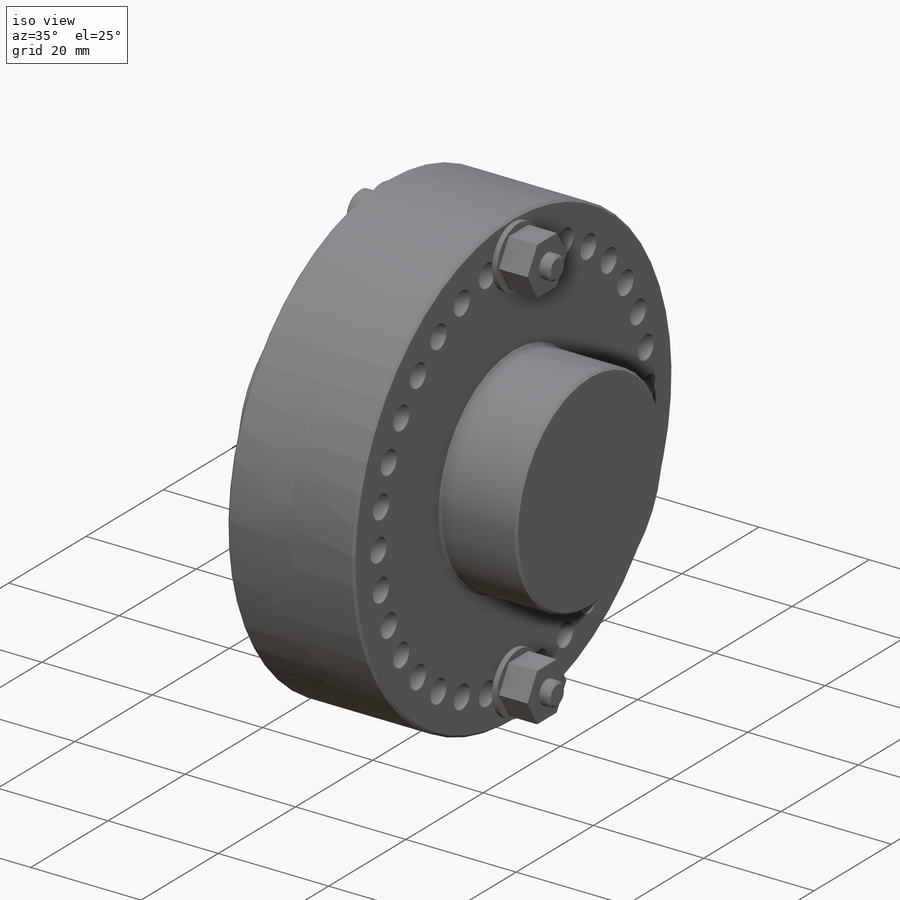
[diagram: iso view]
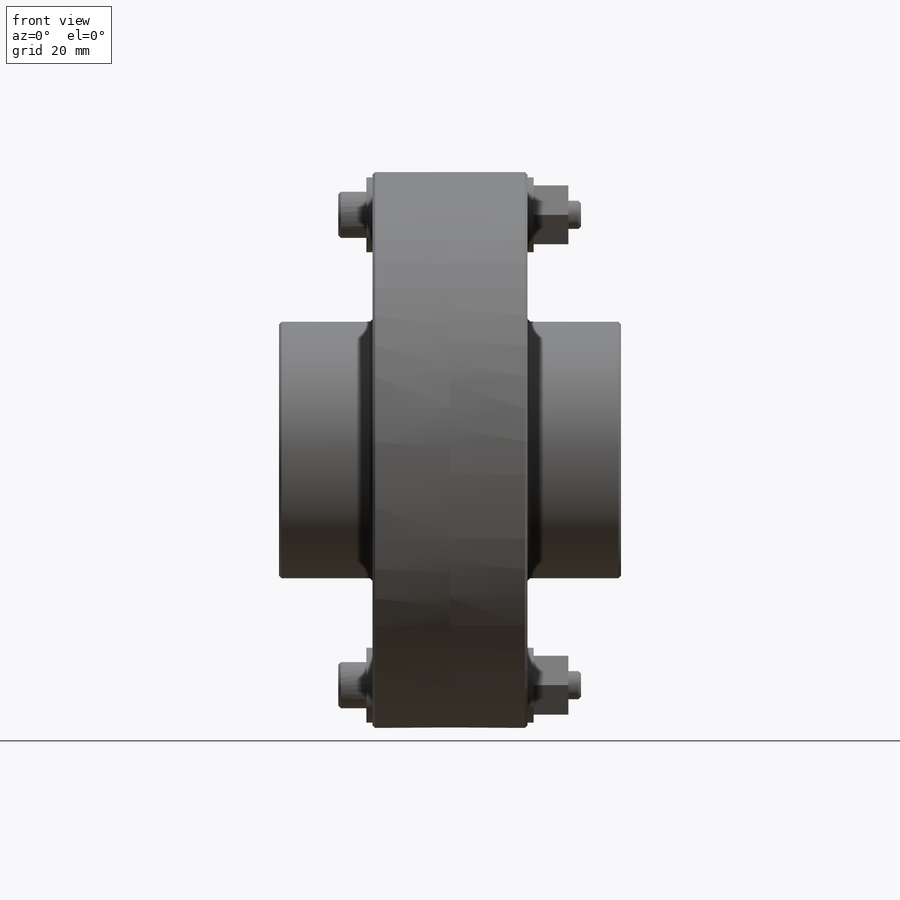
[diagram: front view]
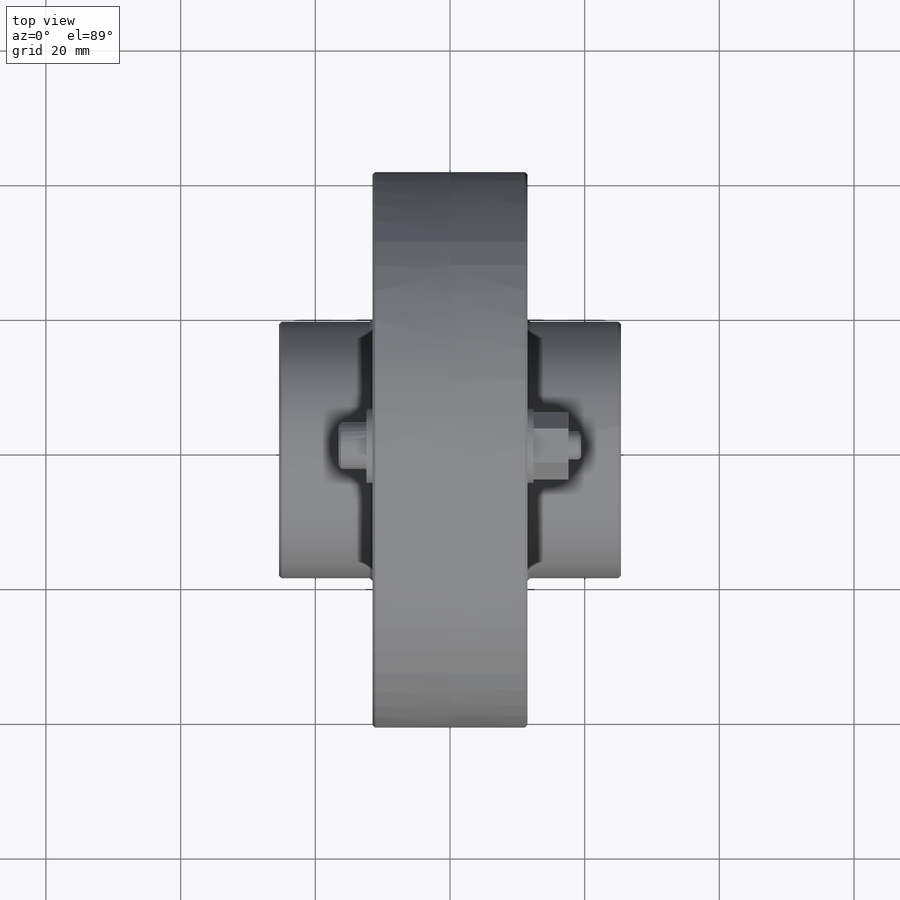
[diagram: top view]
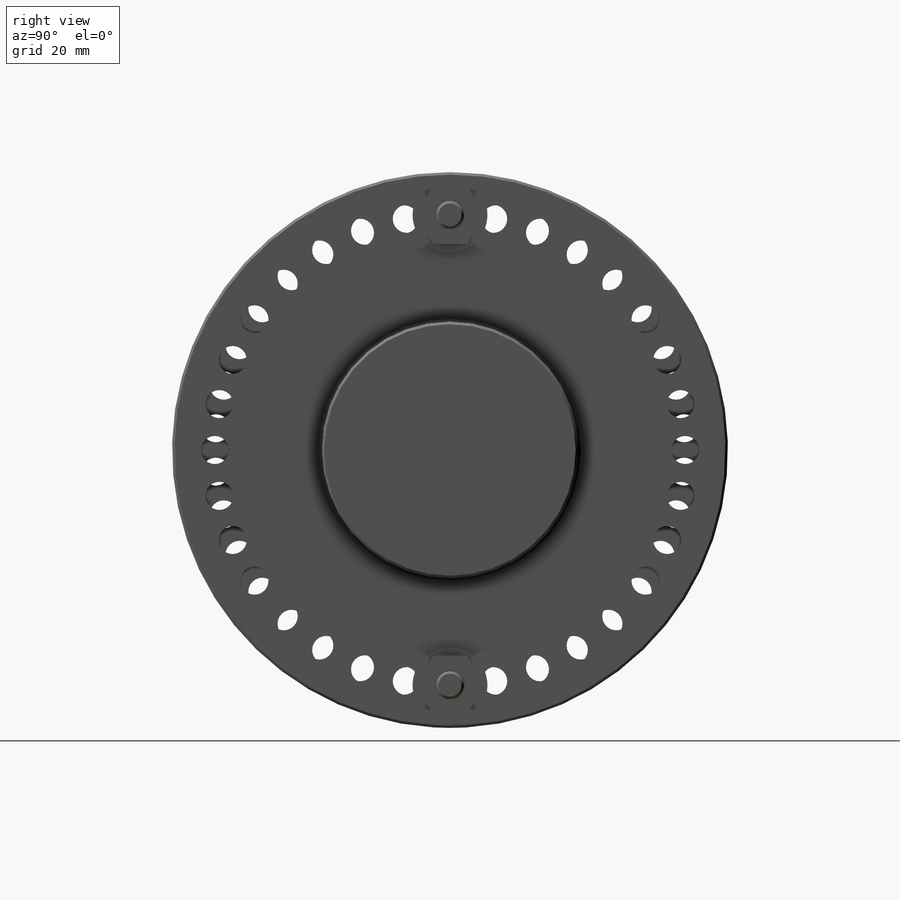
[diagram: right view]
SOLIDWORKS PART (.sldprt)
format: sldprt  version: not decoded by parser v0  size: 564,736 bytes
history: native  units: mm
features: sketch x8, extrude x4, mirror x3, cut_extrude x3, chamfer x2, material x1, revolve x1, plane x1 + 1 further entry (+17 scaffold rows collapsed)
feature tree (41):
  scaffold x17  (default folders/planes/origin — collapsed)
  material  "Material <not specified>"
  "Design Table"
  sketch  "Sketch1"  dims[Dim K=25.4mm Dim A=82.55mm Dim E=~11.509375mm Dim C=38.1mm]
  revolve  "Revolve1"  Angle=360deg
  chamfer  "Chamfer2"  Distance=0.381mm Angle=45deg
  mirror  "Mirror1"
  sketch  "Sketch2"  dims[Dim H=69.85mm Dim D=4.1656mm D1=34.0]
  cut_extrude  "Cut-Extrude1"  [1 undecoded]
  sketch  "Sketch3"  dims[D1=32.0]
  cut_extrude  "Cut-Extrude2"  [1 undecoded]
  sketch  "Sketch4"  dims[Dim Washer OD=11.1125mm Dim Washer ID=4.7625mm]
  extrude  "Boss-Extrude1"  Depth=0.9144mm Dim Washer Thickness=0.9144mm
  mirror  "Mirror2"
  plane  "Plane1"  Offset=5.9436mm Dim G=5.9436mm
  sketch  "Sketch5"  dims[Dim head dia=6.858mm]
  extrude  "Boss-Extrude2"  Depth=4.1656mm Dim head depth=4.1656mm
  sketch  "Sketch6"  dims[Dim socket hex width=~3.571875mm]
  cut_extrude  "Cut-Extrude3"  Depth=3.571875mm dim socket hex depth=3.571875mm
  sketch  "Sketch7"
  extrude  "Boss-Extrude4"  [1 undecoded]
  sketch  "Sketch8"  dims[Dim nut width=~8.73125mm]
  extrude  "Boss-Extrude5"  Depth=5.1562mm Dim nut height=5.1562mm
  chamfer  "Chamfer1"  Distance=0.381mm Angle=45deg
  mirror  "Mirror3"
decode coverage: 14 of 21 modeling features carry decoded parameters; 1 rows unclassified (native names shown)
note: ~ marks probable driven/reference dimensions
note: 3 parameter values undecoded
summary: no parameter record found for 3 features
note: suppression state not decoded; provenance and decode notes live in map.json
